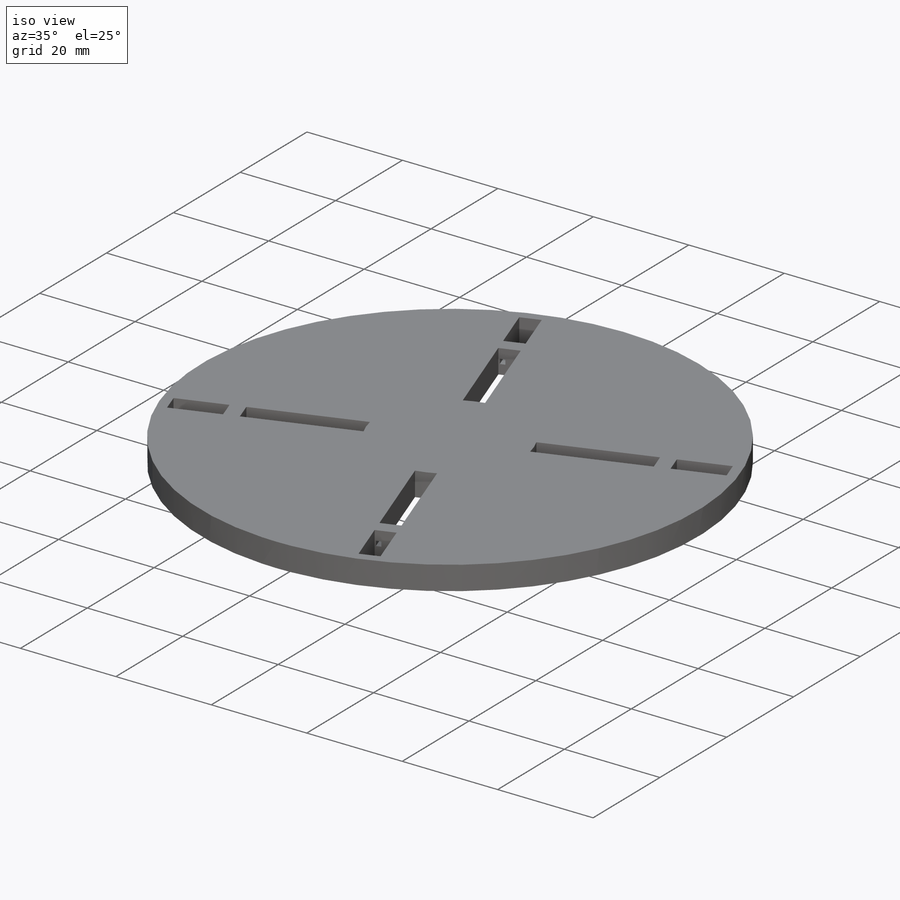
[diagram: iso view]
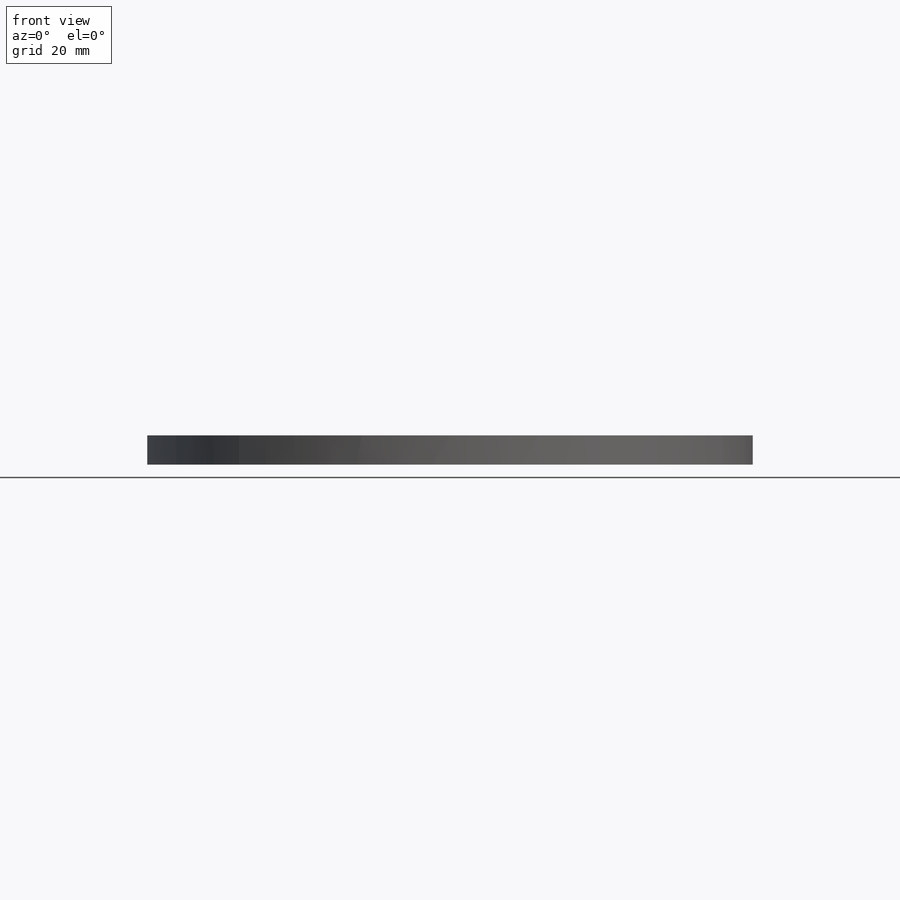
[diagram: front view]
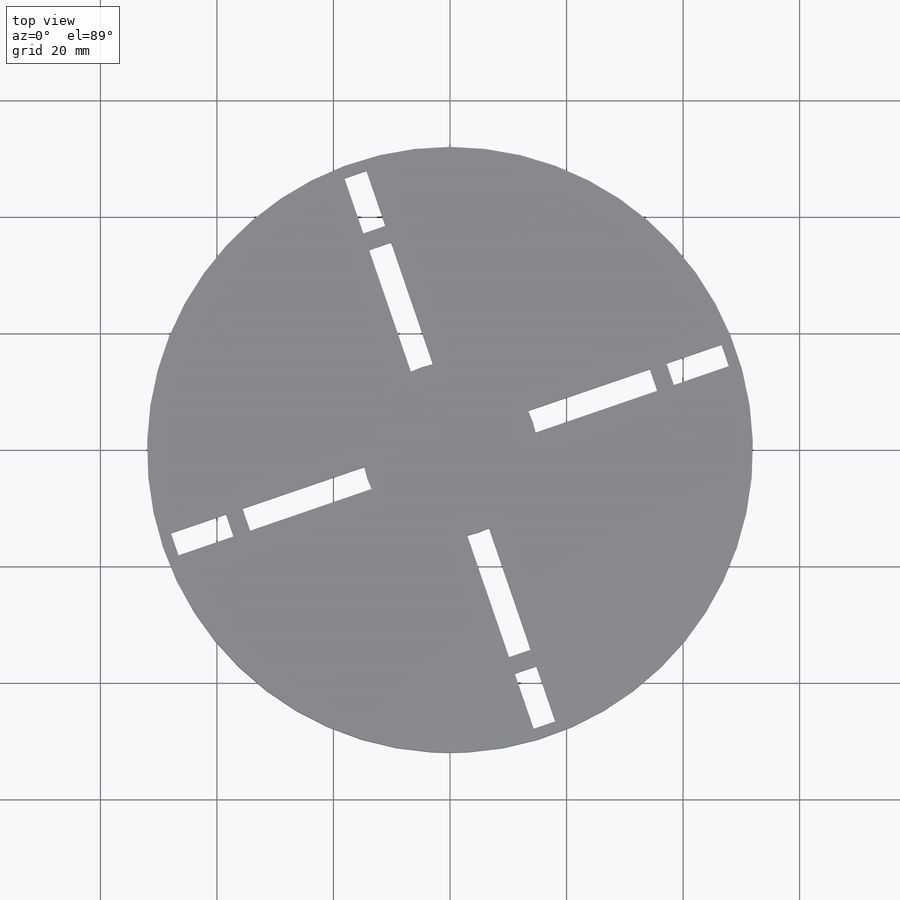
[diagram: top view]
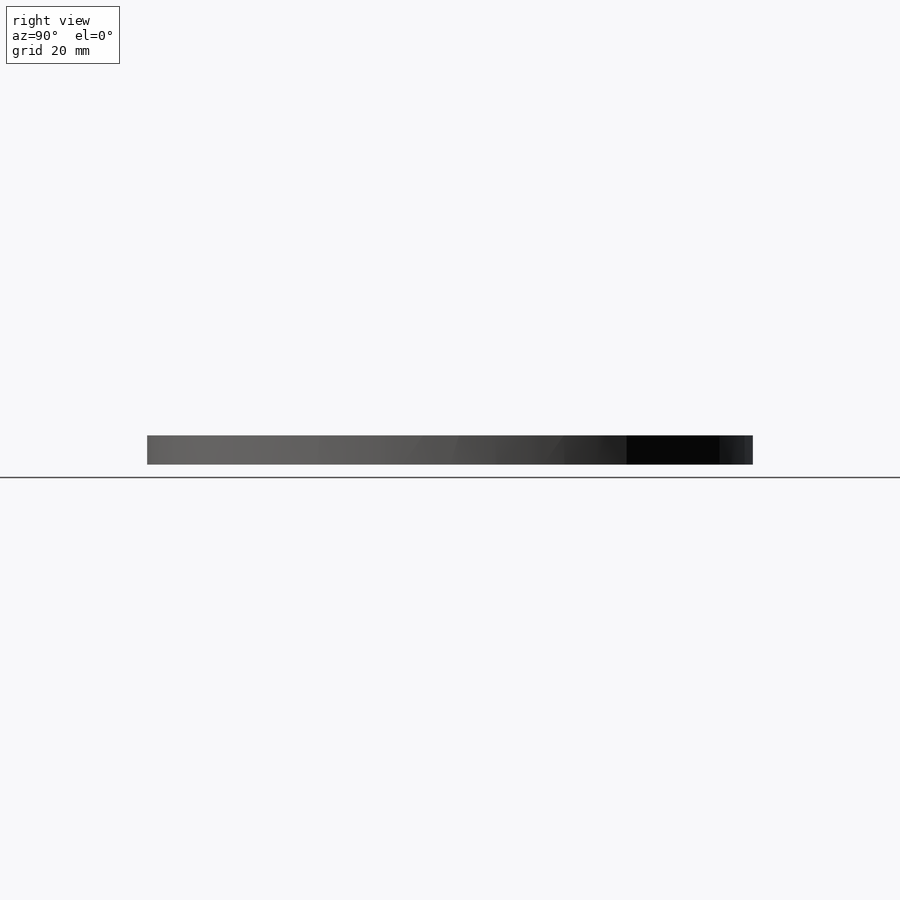
[diagram: right view]
SOLIDWORKS PART (.sldprt)
format: sldprt  version: not decoded by parser v0  size: 326,144 bytes
history: native  units: mm
features: sketch x4, cut_extrude x3, material x1, extrude x1, pattern_circular x1 (+12 scaffold rows collapsed)
feature tree (22):
  scaffold x12  (default folders/planes/origin — collapsed)
  material  "Material <not specified>"
  sketch  "Sketch1"  dims[D1=~18.57543mm]
  extrude  "Boss-Extrude1"  Depth=5mm
  sketch  "Sketch4"  dims[c1.D1=~0.871207mm c2.D1=90.0deg c2.D2=4.0mm c2.D3=4.0mm c3.D3=180.0deg c3.D4=2.5mm c3.D5=~1.950891mm c4.D5=90.0deg c4.D6=8.0mm c4.D7=~2.969388mm c5.D7=180.0deg c6.D7=3.0mm c7.D7=90.0deg c7.D8=2.0mm c8.D7=2.0mm c8.D8=~3.018141mm c9.D8=90.0deg c9.D9=5.0mm c10.D9=180.0deg c10.D10=5.0mm c11.D10=~86.052553deg c12.D10=~0.13801mm c13.D10=90.0deg c13.D11=5.0mm c14.D11=~93.947447deg c15.D11=~1.046321mm c16.D11=90.0deg c16.D7=~8.020487mm c16.D2=8.0]
  cut_extrude  "Cut-Extrude3"  Depth=2.4mm
  sketch  "Sketch8"  dims[c1.D1=~47.191273mm c1.D2=~13.141107mm c2.D1=~96.98641mm c3.D1=90.0deg c3.D2=3.0mm c4.D1=2.0 c4.D2=4.0]
  cut_extrude  "Cut-Extrude6"  Depth=5mm
  sketch  "Sketch9"  dims[D1=1.0mm]
  cut_extrude  "Cut-Extrude7"  Depth=5mm
  pattern_circular  "CirPattern1"  Count=4 Angle=90deg
decode coverage: 9 of 9 modeling features carry decoded parameters
note: ~ marks probable driven/reference dimensions
note: suppression state not decoded; provenance and decode notes live in map.json
